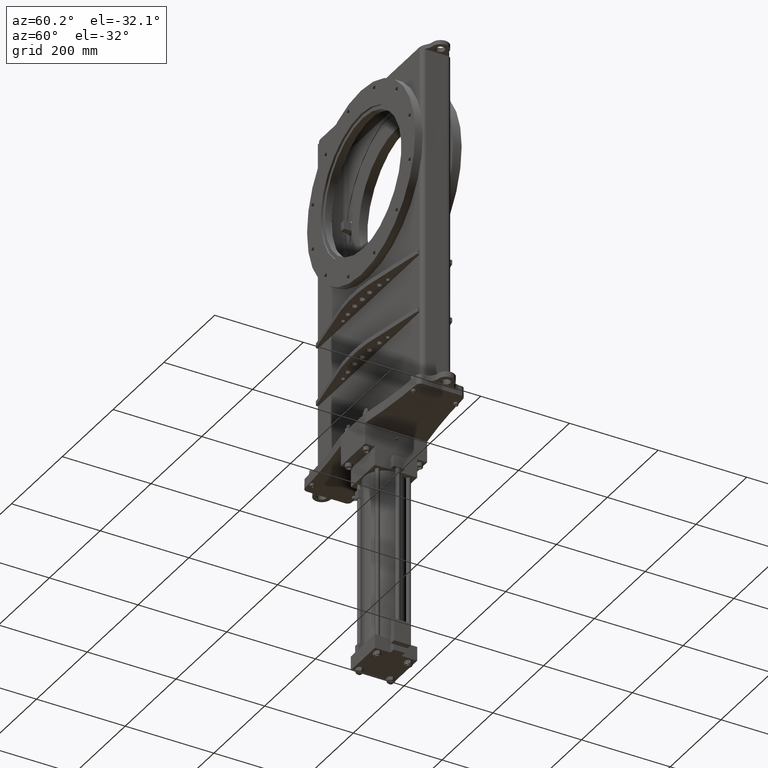
[diagram: clean part render]
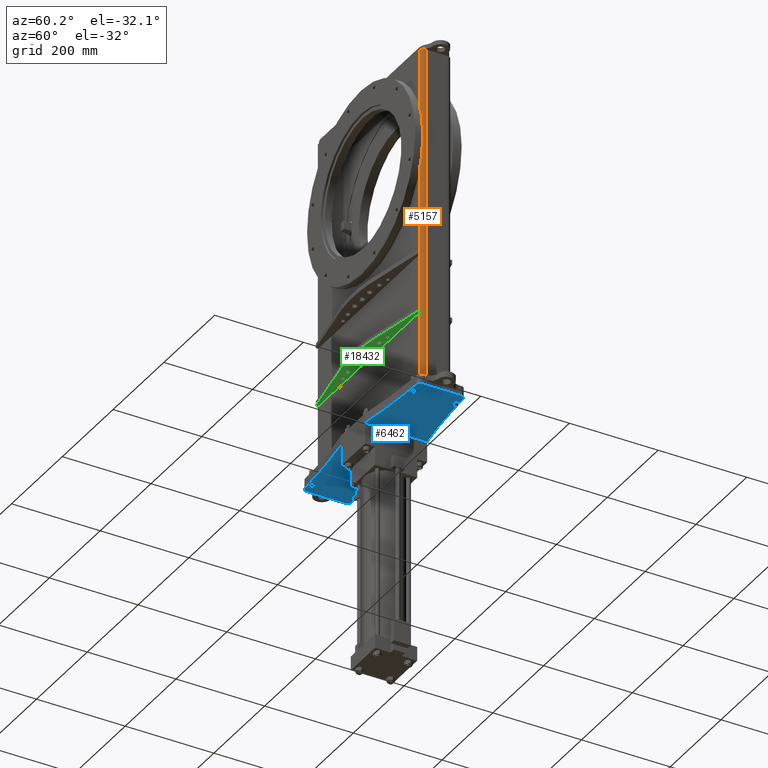
[diagram: same view with three faces highlighted in distinct colors, each labeled with its STEP entity id]
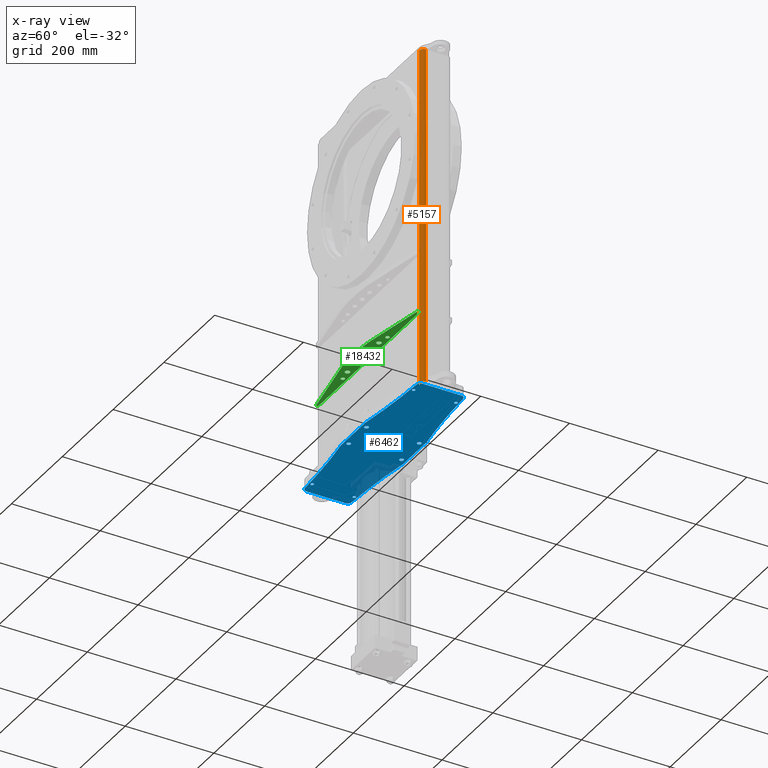
[diagram: x-ray of the same camera — body ghosted, the three highlighted faces saturated]
A machine part, auxiliary view with three faces highlighted in distinct colors.
The next image is the same camera in x-ray (body ghosted, the three faces saturated) — at least one of them is partly hidden behind the body in this view.
Their STEP definitions:

[orange] entity #5157 — the highlighted cylindrical surface (edge-blend (fillet) strip) has radius 9.8425 mm, axis along (0, 0, -1).
#1127 = LINE ( 'NONE', #24862, #17864 ) ;
#1545 = VERTEX_POINT ( 'NONE', #16799 ) ;
#1789 = CARTESIAN_POINT ( 'NONE',  ( 8.187499999999998200, -2.745100000000000800, -22.21999999999999500 ) ) ;
#2691 = DIRECTION ( 'NONE',  ( 0.0000000000000000000, 0.0000000000000000000, -1.000000000000000000 ) ) ;
#2692 = CARTESIAN_POINT ( 'NONE',  ( 7.799999999999998000, -3.132600000000000500, 8.000000000000001800 ) ) ;
#3459 = DIRECTION ( 'NONE',  ( 0.0000000000000000000, 0.0000000000000000000, -1.000000000000000000 ) ) ;
#4138 = DIRECTION ( 'NONE',  ( 1.000000000000000000, -1.409986061246070700E-015, 0.0000000000000000000 ) ) ;
#4750 = CARTESIAN_POINT ( 'NONE',  ( 7.799999999999998000, -3.132600000000000500, -22.21999999999999500 ) ) ;
#5157 = ADVANCED_FACE ( 'NONE', ( #6836 ), #9964, .T. ) ;
#5783 = DIRECTION ( 'NONE',  ( 0.0000000000000000000, 0.0000000000000000000, 1.000000000000000000 ) ) ;
#5958 = EDGE_CURVE ( 'NONE', #23978, #12766, #1127, .T. ) ;
#6730 = EDGE_CURVE ( 'NONE', #23978, #1545, #14354, .T. ) ;
#6836 = FACE_OUTER_BOUND ( 'NONE', #20863, .T. ) ;
#7315 = VERTEX_POINT ( 'NONE', #1789 ) ;
#9627 = ORIENTED_EDGE ( 'NONE', *, *, #5958, .T. ) ;
#9964 = CYLINDRICAL_SURFACE ( 'NONE', #13774, 0.3875000000000001800 ) ;
#10795 = CIRCLE ( 'NONE', #20075, 0.3875000000000001800 ) ;
#12766 = VERTEX_POINT ( 'NONE', #4750 ) ;
#13387 = DIRECTION ( 'NONE',  ( 1.000000000000000000, -1.409986061246070700E-015, 0.0000000000000000000 ) ) ;
#13454 = ORIENTED_EDGE ( 'NONE', *, *, #6730, .F. ) ;
#13478 = DIRECTION ( 'NONE',  ( 0.0000000000000000000, 0.0000000000000000000, 1.000000000000000000 ) ) ;
#13774 = AXIS2_PLACEMENT_3D ( 'NONE', #22027, #16220, #4138 ) ;
#13832 = CARTESIAN_POINT ( 'NONE',  ( 7.799999999999998000, -2.745100000000000300, 8.000000000000001800 ) ) ;
#14354 = CIRCLE ( 'NONE', #25073, 0.3875000000000001800 ) ;
#14935 = EDGE_CURVE ( 'NONE', #1545, #7315, #19479, .T. ) ;
#16220 = DIRECTION ( 'NONE',  ( 0.0000000000000000000, 0.0000000000000000000, -1.000000000000000000 ) ) ;
#16799 = CARTESIAN_POINT ( 'NONE',  ( 8.187499999999998200, -2.745100000000000800, 8.000000000000001800 ) ) ;
#17864 = VECTOR ( 'NONE', #2691, 39.37007874015748100 ) ;
#19479 = LINE ( 'NONE', #23616, #25426 ) ;
#19873 = DIRECTION ( 'NONE',  ( 1.000000000000000000, -1.409986061246070700E-015, 0.0000000000000000000 ) ) ;
#20075 = AXIS2_PLACEMENT_3D ( 'NONE', #25582, #13478, #13387 ) ;
#20863 = EDGE_LOOP ( 'NONE', ( #23639, #25290, #13454, #9627 ) ) ;
#22027 = CARTESIAN_POINT ( 'NONE',  ( 7.799999999999998000, -2.745100000000000300, 8.000000000000001800 ) ) ;
#23616 = CARTESIAN_POINT ( 'NONE',  ( 8.187499999999998200, -2.745100000000000800, 8.000000000000001800 ) ) ;
#23639 = ORIENTED_EDGE ( 'NONE', *, *, #24561, .T. ) ;
#23978 = VERTEX_POINT ( 'NONE', #2692 ) ;
#24561 = EDGE_CURVE ( 'NONE', #12766, #7315, #10795, .T. ) ;
#24862 = CARTESIAN_POINT ( 'NONE',  ( 7.799999999999998000, -3.132600000000000500, 8.000000000000001800 ) ) ;
#25073 = AXIS2_PLACEMENT_3D ( 'NONE', #13832, #5783, #19873 ) ;
#25290 = ORIENTED_EDGE ( 'NONE', *, *, #14935, .F. ) ;
#25426 = VECTOR ( 'NONE', #3459, 39.37007874015748100 ) ;
#25582 = CARTESIAN_POINT ( 'NONE',  ( 7.799999999999998000, -2.745100000000000300, -22.21999999999999500 ) ) ;

[blue] entity #6462 — the highlighted planar face has unit normal (0, 0, 1).
#14 = EDGE_CURVE ( 'NONE', #9957, #6498, #23739, .T. ) ;
#112 = DIRECTION ( 'NONE',  ( -1.545021906791244600E-017, -3.682666505295028400E-016, -1.000000000000000000 ) ) ;
#322 = CARTESIAN_POINT ( 'NONE',  ( -1.562500000000005800, 0.5588999999999940700, -23.09499999999999900 ) ) ;
#383 = AXIS2_PLACEMENT_3D ( 'NONE', #7855, #112, #3901 ) ;
#417 = CARTESIAN_POINT ( 'NONE',  ( 1.845759139634372700, 0.5899000000000080800, -23.09499999999999900 ) ) ;
#429 = EDGE_CURVE ( 'NONE', #12419, #7176, #8901, .T. ) ;
#531 = CIRCLE ( 'NONE', #22050, 0.3750000000000013300 ) ;
#550 = EDGE_CURVE ( 'NONE', #16265, #14873, #6706, .T. ) ;
#553 = VERTEX_POINT ( 'NONE', #25818 ) ;
#607 = ORIENTED_EDGE ( 'NONE', *, *, #11403, .T. ) ;
#665 = ORIENTED_EDGE ( 'NONE', *, *, #22387, .T. ) ;
#703 = EDGE_CURVE ( 'NONE', #19814, #9384, #2923, .T. ) ;
#718 = DIRECTION ( 'NONE',  ( 1.545021906791244600E-017, 3.682666505295028400E-016, 1.000000000000000000 ) ) ;
#926 = LINE ( 'NONE', #19258, #18911 ) ;
#1403 = CIRCLE ( 'NONE', #18356, 60.00000000000020600 ) ;
#1474 = VERTEX_POINT ( 'NONE', #14177 ) ;
#1535 = ORIENTED_EDGE ( 'NONE', *, *, #15161, .T. ) ;
#1636 = DIRECTION ( 'NONE',  ( -1.545021906791244600E-017, -3.682666505295028400E-016, -1.000000000000000000 ) ) ;
#1657 = CARTESIAN_POINT ( 'NONE',  ( -7.875000000000033800, -3.660099999999991000, -23.09499999999999900 ) ) ;
#1675 = CARTESIAN_POINT ( 'NONE',  ( -8.015000000000034300, -3.660099999999991000, -23.09499999999999900 ) ) ;
#1683 = CARTESIAN_POINT ( 'NONE',  ( 1.845759139634372200, -4.160100000000012300, -23.09499999999999900 ) ) ;
#1951 = VERTEX_POINT ( 'NONE', #22228 ) ;
#1989 = CARTESIAN_POINT ( 'NONE',  ( 11.18994721212421700, -63.80762110746872700, -23.09499999999997800 ) ) ;
#2054 = ORIENTED_EDGE ( 'NONE', *, *, #550, .T. ) ;
#2239 = CIRCLE ( 'NONE', #11986, 0.6250000000000021100 ) ;
#2256 = VERTEX_POINT ( 'NONE', #1675 ) ;
#2309 = CIRCLE ( 'NONE', #22095, 0.3750000000000013300 ) ;
#2378 = ORIENTED_EDGE ( 'NONE', *, *, #21895, .T. ) ;
#2409 = CARTESIAN_POINT ( 'NONE',  ( -8.640931349143661700, 0.2915912430798448500, -23.09499999999999900 ) ) ;
#2454 = VERTEX_POINT ( 'NONE', #20248 ) ;
#2484 = DIRECTION ( 'NONE',  ( 1.545021906791222500E-017, 3.682666505295028900E-016, 1.000000000000000000 ) ) ;
#2518 = EDGE_CURVE ( 'NONE', #9834, #7970, #21109, .T. ) ;
#2520 = DIRECTION ( 'NONE',  ( -1.000000000000000000, 1.092739197465703100E-015, 0.0000000000000000000 ) ) ;
#2547 = DIRECTION ( 'NONE',  ( 1.545021906791244600E-017, 3.682666505295028400E-016, 1.000000000000000000 ) ) ;
#2585 = CARTESIAN_POINT ( 'NONE',  ( -9.000000000000032000, 0.9648999999999965400, -23.09499999999999900 ) ) ;
#2596 = AXIS2_PLACEMENT_3D ( 'NONE', #21121, #2898, #16750 ) ;
#2641 = DIRECTION ( 'NONE',  ( 1.545021906791244600E-017, 3.682666505295028400E-016, 1.000000000000000000 ) ) ;
#2660 = DIRECTION ( 'NONE',  ( -1.000000000000000000, 0.0000000000000000000, 0.0000000000000000000 ) ) ;
#2814 = DIRECTION ( 'NONE',  ( -1.545021906791244600E-017, -3.682666505295028400E-016, -1.000000000000000000 ) ) ;
#2817 = DIRECTION ( 'NONE',  ( -1.000000000000000000, 1.092739197465703100E-015, 0.0000000000000000000 ) ) ;
#2819 = ORIENTED_EDGE ( 'NONE', *, *, #19687, .T. ) ;
#2898 = DIRECTION ( 'NONE',  ( -1.545021906791244600E-017, -3.682666505295028400E-016, -1.000000000000000000 ) ) ;
#2923 = CIRCLE ( 'NONE', #19911, 0.1875000000000003900 ) ;
#2924 = ORIENTED_EDGE ( 'NONE', *, *, #4598, .F. ) ;
#3331 = EDGE_CURVE ( 'NONE', #6498, #9957, #4693, .T. ) ;
#3674 = EDGE_LOOP ( 'NONE', ( #2819, #665 ) ) ;
#3696 = CIRCLE ( 'NONE', #17600, 0.1400000000000012300 ) ;
#3728 = DIRECTION ( 'NONE',  ( -1.000000000000000000, 8.741913579725612700E-016, 0.0000000000000000000 ) ) ;
#3773 = DIRECTION ( 'NONE',  ( -1.000000000000000000, 0.0000000000000000000, 0.0000000000000000000 ) ) ;
#3774 = ORIENTED_EDGE ( 'NONE', *, *, #10426, .T. ) ;
#3901 = DIRECTION ( 'NONE',  ( -1.000000000000000000, 8.741913579725614700E-016, 0.0000000000000000000 ) ) ;
#3991 = DIRECTION ( 'NONE',  ( -1.000000000000000000, 2.731847993664253400E-015, 0.0000000000000000000 ) ) ;
#3999 = DIRECTION ( 'NONE',  ( 1.545021906791244600E-017, 3.682666505295028400E-016, 1.000000000000000000 ) ) ;
#4045 = DIRECTION ( 'NONE',  ( 1.545021906791244600E-017, 3.682666505295028400E-016, 1.000000000000000000 ) ) ;
#4051 = VERTEX_POINT ( 'NONE', #23872 ) ;
#4132 = DIRECTION ( 'NONE',  ( -1.000000000000000000, 9.756599977372281900E-016, 0.0000000000000000000 ) ) ;
#4181 = DIRECTION ( 'NONE',  ( -1.000000000000000000, 0.0000000000000000000, 0.0000000000000000000 ) ) ;
#4207 = AXIS2_PLACEMENT_3D ( 'NONE', #7770, #23986, #25996 ) ;
#4369 = EDGE_CURVE ( 'NONE', #21922, #1474, #5595, .T. ) ;
#4503 = CARTESIAN_POINT ( 'NONE',  ( -8.015000000000032500, 0.08990000000000127100, -23.09499999999999900 ) ) ;
#4598 = EDGE_CURVE ( 'NONE', #9464, #13652, #14448, .T. ) ;
#4688 = AXIS2_PLACEMENT_3D ( 'NONE', #1683, #19835, #17916 ) ;
#4693 = CIRCLE ( 'NONE', #10339, 0.1400000000000012300 ) ;
#4757 = AXIS2_PLACEMENT_3D ( 'NONE', #20331, #2547, #10384 ) ;
#4991 = LINE ( 'NONE', #2585, #10352 ) ;
#5214 = EDGE_LOOP ( 'NONE', ( #17499, #16343 ) ) ;
#5323 = EDGE_CURVE ( 'NONE', #1474, #8414, #10491, .T. ) ;
#5404 = EDGE_LOOP ( 'NONE', ( #2054, #17545 ) ) ;
#5520 = CARTESIAN_POINT ( 'NONE',  ( 1.187500000000002000, -4.129099999999999300, -23.09499999999999900 ) ) ;
#5595 = CIRCLE ( 'NONE', #2596, 0.3750000000000013300 ) ;
#5712 = DIRECTION ( 'NONE',  ( 1.545021906791244600E-017, 3.682666505295028400E-016, 1.000000000000000000 ) ) ;
#5990 = AXIS2_PLACEMENT_3D ( 'NONE', #8893, #6789, #17188 ) ;
#6065 = VERTEX_POINT ( 'NONE', #25112 ) ;
#6130 = ORIENTED_EDGE ( 'NONE', *, *, #7934, .T. ) ;
#6220 = CARTESIAN_POINT ( 'NONE',  ( -7.875000000000031100, 0.08990000000000113200, -23.09499999999999900 ) ) ;
#6308 = CARTESIAN_POINT ( 'NONE',  ( 1.375000000000002700, 0.5588999999999921800, -23.09499999999999900 ) ) ;
#6389 = DIRECTION ( 'NONE',  ( -1.000000000000000000, 1.092739197465703100E-015, 0.0000000000000000000 ) ) ;
#6462 = ADVANCED_FACE ( 'NONE', ( #8656, #25674, #25019, #19059, #18431, #17180, #13726, #14982, #22846, #11508 ), #22746, .F. ) ;
#6498 = VERTEX_POINT ( 'NONE', #4503 ) ;
#6627 = DIRECTION ( 'NONE',  ( -1.000000000000000000, 9.436895709313805000E-016, 1.545021906791187600E-017 ) ) ;
#6687 = CARTESIAN_POINT ( 'NONE',  ( 1.375000000000002700, 0.5588999999999921800, -23.09499999999999900 ) ) ;
#6706 = CIRCLE ( 'NONE', #20922, 0.1875000000000003900 ) ;
#6721 = EDGE_CURVE ( 'NONE', #4051, #14766, #1403, .T. ) ;
#6729 = AXIS2_PLACEMENT_3D ( 'NONE', #22246, #10175, #4181 ) ;
#6762 = VERTEX_POINT ( 'NONE', #21735 ) ;
#6782 = DIRECTION ( 'NONE',  ( -1.000000000000000000, 2.731847993664253400E-015, 0.0000000000000000000 ) ) ;
#6789 = DIRECTION ( 'NONE',  ( 1.545021906791244600E-017, 3.682666505295028400E-016, 1.000000000000000000 ) ) ;
#7042 = VERTEX_POINT ( 'NONE', #17060 ) ;
#7176 = VERTEX_POINT ( 'NONE', #7508 ) ;
#7279 = CARTESIAN_POINT ( 'NONE',  ( -7.735000000000029600, 0.08990000000000097900, -23.09499999999999900 ) ) ;
#7293 = AXIS2_PLACEMENT_3D ( 'NONE', #12960, #2814, #6782 ) ;
#7508 = CARTESIAN_POINT ( 'NONE',  ( -1.187500000000005300, -4.129099999999994000, -23.09499999999999900 ) ) ;
#7550 = CARTESIAN_POINT ( 'NONE',  ( -8.625000000000032000, -0.08307019357257944300, -23.09499999999999900 ) ) ;
#7770 = CARTESIAN_POINT ( 'NONE',  ( -1.375000000000005800, -4.129099999999994000, -23.09499999999999900 ) ) ;
#7807 = DIRECTION ( 'NONE',  ( -1.000000000000000000, 2.913971193241870500E-015, 0.0000000000000000000 ) ) ;
#7855 = CARTESIAN_POINT ( 'NONE',  ( -11.18994721212420500, 60.23742110746872700, -23.09500000000002000 ) ) ;
#7934 = EDGE_CURVE ( 'NONE', #13253, #9834, #2309, .T. ) ;
#7970 = VERTEX_POINT ( 'NONE', #8507 ) ;
#8032 = ORIENTED_EDGE ( 'NONE', *, *, #23311, .T. ) ;
#8115 = CARTESIAN_POINT ( 'NONE',  ( 8.015000000000032500, 0.08989999999998458900, -23.09499999999999900 ) ) ;
#8128 = ORIENTED_EDGE ( 'NONE', *, *, #12886, .T. ) ;
#8296 = EDGE_CURVE ( 'NONE', #553, #12976, #21864, .T. ) ;
#8344 = CARTESIAN_POINT ( 'NONE',  ( -11.18994721212422000, -63.80762110746871900, -23.09499999999997800 ) ) ;
#8414 = VERTEX_POINT ( 'NONE', #12987 ) ;
#8507 = CARTESIAN_POINT ( 'NONE',  ( 8.640931349143663500, 0.2915912430798186500, -23.09499999999999900 ) ) ;
#8656 = FACE_BOUND ( 'NONE', #21367, .T. ) ;
#8713 = DIRECTION ( 'NONE',  ( 1.545021906791244600E-017, 3.682666505295028400E-016, 1.000000000000000000 ) ) ;
#8770 = VERTEX_POINT ( 'NONE', #25786 ) ;
#8839 = CARTESIAN_POINT ( 'NONE',  ( 7.735000000000029600, 0.08989999999998488100, -23.09499999999999900 ) ) ;
#8891 = AXIS2_PLACEMENT_3D ( 'NONE', #18480, #20405, #4132 ) ;
#8893 = CARTESIAN_POINT ( 'NONE',  ( 7.875000000000031100, -3.660100000000007000, -23.09499999999999900 ) ) ;
#8901 = CIRCLE ( 'NONE', #4207, 0.1875000000000003900 ) ;
#9017 = CIRCLE ( 'NONE', #22536, 0.3750000000000013300 ) ;
#9018 = DIRECTION ( 'NONE',  ( -1.000000000000000000, 9.756599977372281900E-016, 0.0000000000000000000 ) ) ;
#9040 = CIRCLE ( 'NONE', #12396, 0.1875000000000003900 ) ;
#9111 = EDGE_CURVE ( 'NONE', #10230, #6762, #2239, .T. ) ;
#9319 = DIRECTION ( 'NONE',  ( -1.545021906791244600E-017, -3.682666505295028400E-016, -1.000000000000000000 ) ) ;
#9329 = DIRECTION ( 'NONE',  ( -1.000000000000000000, 8.741913579725612700E-016, 0.0000000000000000000 ) ) ;
#9384 = VERTEX_POINT ( 'NONE', #18793 ) ;
#9464 = VERTEX_POINT ( 'NONE', #23430 ) ;
#9468 = DIRECTION ( 'NONE',  ( -1.000000000000000000, 9.436895709313805000E-016, 1.545021906791187300E-017 ) ) ;
#9505 = DIRECTION ( 'NONE',  ( 1.545021906791244600E-017, 3.682666505295028400E-016, 1.000000000000000000 ) ) ;
#9560 = CARTESIAN_POINT ( 'NONE',  ( 7.875000000000031100, 0.08989999999998474200, -23.09499999999999900 ) ) ;
#9834 = VERTEX_POINT ( 'NONE', #15066 ) ;
#9917 = LINE ( 'NONE', #20240, #17510 ) ;
#9957 = VERTEX_POINT ( 'NONE', #7279 ) ;
#10010 = DIRECTION ( 'NONE',  ( -1.000000000000000000, 8.741913579725612700E-016, 0.0000000000000000000 ) ) ;
#10018 = DIRECTION ( 'NONE',  ( -1.000000000000000000, 9.756599977372281900E-016, 0.0000000000000000000 ) ) ;
#10175 = DIRECTION ( 'NONE',  ( 1.545021906791244600E-017, 3.682666505295028400E-016, 1.000000000000000000 ) ) ;
#10213 = DIRECTION ( 'NONE',  ( -1.000000000000000000, 2.913971193241870500E-015, 0.0000000000000000000 ) ) ;
#10230 = VERTEX_POINT ( 'NONE', #16634 ) ;
#10335 = CIRCLE ( 'NONE', #21858, 0.3750000000000013300 ) ;
#10339 = AXIS2_PLACEMENT_3D ( 'NONE', #21013, #23048, #9018 ) ;
#10352 = VECTOR ( 'NONE', #12905, 39.37007874015748100 ) ;
#10384 = DIRECTION ( 'NONE',  ( -1.000000000000000000, 8.741913579725614700E-016, 0.0000000000000000000 ) ) ;
#10426 = EDGE_CURVE ( 'NONE', #7042, #21922, #926, .T. ) ;
#10491 = CIRCLE ( 'NONE', #18158, 60.00000000000020600 ) ;
#10677 = CIRCLE ( 'NONE', #5990, 0.1400000000000012300 ) ;
#10679 = CARTESIAN_POINT ( 'NONE',  ( -7.875000000000033800, -3.660099999999991000, -23.09499999999999900 ) ) ;
#10783 = EDGE_CURVE ( 'NONE', #8770, #1951, #4991, .T. ) ;
#10820 = AXIS2_PLACEMENT_3D ( 'NONE', #9560, #15586, #19701 ) ;
#10829 = AXIS2_PLACEMENT_3D ( 'NONE', #11501, #19677, #21621 ) ;
#10863 = VERTEX_POINT ( 'NONE', #16868 ) ;
#10949 = ORIENTED_EDGE ( 'NONE', *, *, #2518, .T. ) ;
#11150 = ORIENTED_EDGE ( 'NONE', *, *, #6721, .F. ) ;
#11403 = EDGE_CURVE ( 'NONE', #2256, #12395, #13823, .T. ) ;
#11468 = ORIENTED_EDGE ( 'NONE', *, *, #9111, .T. ) ;
#11501 = CARTESIAN_POINT ( 'NONE',  ( 1.375000000000002400, -4.129099999999999300, -23.09499999999999900 ) ) ;
#11508 = FACE_OUTER_BOUND ( 'NONE', #24435, .T. ) ;
#11611 = AXIS2_PLACEMENT_3D ( 'NONE', #14567, #2484, #6627 ) ;
#11671 = ORIENTED_EDGE ( 'NONE', *, *, #15635, .T. ) ;
#11720 = LINE ( 'NONE', #14981, #25855 ) ;
#11824 = ORIENTED_EDGE ( 'NONE', *, *, #14, .T. ) ;
#11939 = ORIENTED_EDGE ( 'NONE', *, *, #8296, .T. ) ;
#11977 = AXIS2_PLACEMENT_3D ( 'NONE', #6220, #20309, #10018 ) ;
#11986 = AXIS2_PLACEMENT_3D ( 'NONE', #12101, #3999, #3728 ) ;
#12051 = CARTESIAN_POINT ( 'NONE',  ( 8.625000000000033800, -3.487129806427417200, -23.09499999999999900 ) ) ;
#12101 = CARTESIAN_POINT ( 'NONE',  ( -5.492665148080862000E-016, -1.785100000000002800, -23.09499999999999900 ) ) ;
#12146 = CARTESIAN_POINT ( 'NONE',  ( 7.875000000000031100, -3.660100000000007000, -23.09499999999999900 ) ) ;
#12395 = VERTEX_POINT ( 'NONE', #13101 ) ;
#12396 = AXIS2_PLACEMENT_3D ( 'NONE', #23028, #17218, #19142 ) ;
#12419 = VERTEX_POINT ( 'NONE', #21445 ) ;
#12556 = EDGE_LOOP ( 'NONE', ( #15561, #11468 ) ) ;
#12886 = EDGE_CURVE ( 'NONE', #9464, #16378, #18951, .T. ) ;
#12905 = DIRECTION ( 'NONE',  ( 1.110223024625161500E-016, 1.000000000000000000, -3.682666505295027500E-016 ) ) ;
#12959 = CIRCLE ( 'NONE', #26005, 0.6250000000000021100 ) ;
#12960 = CARTESIAN_POINT ( 'NONE',  ( -1.845759139634416800, 0.5899000000000103100, -23.09499999999999900 ) ) ;
#12965 = EDGE_LOOP ( 'NONE', ( #22032, #11939 ) ) ;
#12976 = VERTEX_POINT ( 'NONE', #5520 ) ;
#12987 = CARTESIAN_POINT ( 'NONE',  ( -8.640931349143663500, -3.861791243079832500, -23.09499999999999900 ) ) ;
#13021 = CIRCLE ( 'NONE', #13032, 0.1875000000000003900 ) ;
#13032 = AXIS2_PLACEMENT_3D ( 'NONE', #6308, #22593, #2520 ) ;
#13101 = CARTESIAN_POINT ( 'NONE',  ( -7.735000000000032300, -3.660099999999991000, -23.09499999999999900 ) ) ;
#13253 = VERTEX_POINT ( 'NONE', #24431 ) ;
#13393 = ORIENTED_EDGE ( 'NONE', *, *, #18726, .T. ) ;
#13652 = VERTEX_POINT ( 'NONE', #2409 ) ;
#13726 = FACE_BOUND ( 'NONE', #12965, .T. ) ;
#13823 = CIRCLE ( 'NONE', #23163, 0.1400000000000012300 ) ;
#13840 = DIRECTION ( 'NONE',  ( -1.545021906791244600E-017, -3.682666505295028400E-016, -1.000000000000000000 ) ) ;
#14177 = CARTESIAN_POINT ( 'NONE',  ( -1.903797574867272900, -4.530581497561928300, -23.09499999999999900 ) ) ;
#14276 = EDGE_CURVE ( 'NONE', #6065, #2454, #10677, .T. ) ;
#14448 = CIRCLE ( 'NONE', #383, 60.00000000000019200 ) ;
#14464 = EDGE_CURVE ( 'NONE', #1951, #13652, #10335, .T. ) ;
#14468 = DIRECTION ( 'NONE',  ( -1.545021906791244600E-017, -3.682666505295028400E-016, -1.000000000000000000 ) ) ;
#14520 = ORIENTED_EDGE ( 'NONE', *, *, #14464, .T. ) ;
#14532 = DIRECTION ( 'NONE',  ( -1.545021906791244600E-017, -3.682666505295028400E-016, -1.000000000000000000 ) ) ;
#14567 = CARTESIAN_POINT ( 'NONE',  ( 9.000000000000032000, -4.535100000000004300, -23.09499999999999900 ) ) ;
#14727 = CARTESIAN_POINT ( 'NONE',  ( -1.375000000000005300, 0.5588999999999938500, -23.09499999999999900 ) ) ;
#14766 = VERTEX_POINT ( 'NONE', #21245 ) ;
#14783 = EDGE_CURVE ( 'NONE', #7176, #12419, #9040, .T. ) ;
#14873 = VERTEX_POINT ( 'NONE', #21604 ) ;
#14981 = CARTESIAN_POINT ( 'NONE',  ( -9.000000000000032000, 0.9648999999999965400, -23.09499999999999900 ) ) ;
#14982 = FACE_BOUND ( 'NONE', #5214, .T. ) ;
#15066 = CARTESIAN_POINT ( 'NONE',  ( 1.903797574867228200, 0.9603814975619138200, -23.09499999999999900 ) ) ;
#15161 = EDGE_CURVE ( 'NONE', #8414, #8770, #531, .T. ) ;
#15366 = ORIENTED_EDGE ( 'NONE', *, *, #429, .T. ) ;
#15426 = DIRECTION ( 'NONE',  ( -1.000000000000000000, 9.561467977824886800E-016, 0.0000000000000000000 ) ) ;
#15561 = ORIENTED_EDGE ( 'NONE', *, *, #19232, .T. ) ;
#15586 = DIRECTION ( 'NONE',  ( 1.545021906791244600E-017, 3.682666505295028400E-016, 1.000000000000000000 ) ) ;
#15635 = EDGE_CURVE ( 'NONE', #16268, #14766, #9017, .T. ) ;
#15669 = EDGE_CURVE ( 'NONE', #14873, #16265, #17246, .T. ) ;
#15707 = CARTESIAN_POINT ( 'NONE',  ( -5.492665148080862000E-016, -1.785100000000002800, -23.09499999999999900 ) ) ;
#16073 = DIRECTION ( 'NONE',  ( -1.545021906791244600E-017, -3.682666505295028400E-016, -1.000000000000000000 ) ) ;
#16265 = VERTEX_POINT ( 'NONE', #322 ) ;
#16268 = VERTEX_POINT ( 'NONE', #16303 ) ;
#16303 = CARTESIAN_POINT ( 'NONE',  ( 9.000000000000032000, -3.487129806427417200, -23.09499999999999900 ) ) ;
#16343 = ORIENTED_EDGE ( 'NONE', *, *, #703, .T. ) ;
#16378 = VERTEX_POINT ( 'NONE', #16911 ) ;
#16512 = ORIENTED_EDGE ( 'NONE', *, *, #3331, .T. ) ;
#16634 = CARTESIAN_POINT ( 'NONE',  ( 0.6250000000000015500, -1.785100000000003200, -23.09499999999999900 ) ) ;
#16750 = DIRECTION ( 'NONE',  ( -1.000000000000000000, -4.662353909186992800E-014, 0.0000000000000000000 ) ) ;
#16868 = CARTESIAN_POINT ( 'NONE',  ( 9.000000000000033800, -0.08307019357260375700, -23.09499999999999900 ) ) ;
#16911 = CARTESIAN_POINT ( 'NONE',  ( -1.845759139634416600, 0.9648999999999889900, -23.09499999999999900 ) ) ;
#17060 = CARTESIAN_POINT ( 'NONE',  ( 1.845759139634373100, -4.535099999999996400, -23.09499999999999900 ) ) ;
#17161 = EDGE_CURVE ( 'NONE', #7970, #10863, #22528, .T. ) ;
#17180 = FACE_BOUND ( 'NONE', #22345, .T. ) ;
#17188 = DIRECTION ( 'NONE',  ( -1.000000000000000000, 0.0000000000000000000, 0.0000000000000000000 ) ) ;
#17218 = DIRECTION ( 'NONE',  ( 1.545021906791244600E-017, 3.682666505295028400E-016, 1.000000000000000000 ) ) ;
#17246 = CIRCLE ( 'NONE', #25719, 0.1875000000000003900 ) ;
#17499 = ORIENTED_EDGE ( 'NONE', *, *, #25959, .T. ) ;
#17502 = ORIENTED_EDGE ( 'NONE', *, *, #17161, .T. ) ;
#17510 = VECTOR ( 'NONE', #22282, 39.37007874015748100 ) ;
#17545 = ORIENTED_EDGE ( 'NONE', *, *, #15669, .T. ) ;
#17600 = AXIS2_PLACEMENT_3D ( 'NONE', #12146, #4045, #3773 ) ;
#17916 = DIRECTION ( 'NONE',  ( -1.000000000000000000, -1.894081275607215900E-014, 0.0000000000000000000 ) ) ;
#18007 = CARTESIAN_POINT ( 'NONE',  ( 8.625000000000035500, -0.08307019357260567200, -23.09499999999999900 ) ) ;
#18158 = AXIS2_PLACEMENT_3D ( 'NONE', #8344, #22615, #18574 ) ;
#18356 = AXIS2_PLACEMENT_3D ( 'NONE', #1989, #1636, #10010 ) ;
#18389 = CARTESIAN_POINT ( 'NONE',  ( -1.375000000000005300, 0.5588999999999938500, -23.09499999999999900 ) ) ;
#18431 = FACE_BOUND ( 'NONE', #12556, .T. ) ;
#18480 = CARTESIAN_POINT ( 'NONE',  ( 7.875000000000031100, 0.08989999999998474200, -23.09499999999999900 ) ) ;
#18574 = DIRECTION ( 'NONE',  ( -1.000000000000000000, 8.741913579725612700E-016, 0.0000000000000000000 ) ) ;
#18726 = EDGE_CURVE ( 'NONE', #16378, #13253, #11720, .T. ) ;
#18793 = CARTESIAN_POINT ( 'NONE',  ( 1.187500000000002200, 0.5588999999999924000, -23.09499999999999900 ) ) ;
#18911 = VECTOR ( 'NONE', #9468, 39.37007874015748100 ) ;
#18933 = DIRECTION ( 'NONE',  ( 1.000000000000000000, -9.436895709313805000E-016, -1.545021906791187300E-017 ) ) ;
#18951 = CIRCLE ( 'NONE', #7293, 0.3750000000000013300 ) ;
#19059 = FACE_BOUND ( 'NONE', #24785, .T. ) ;
#19142 = DIRECTION ( 'NONE',  ( -1.000000000000000000, 0.0000000000000000000, 0.0000000000000000000 ) ) ;
#19173 = ORIENTED_EDGE ( 'NONE', *, *, #14783, .T. ) ;
#19232 = EDGE_CURVE ( 'NONE', #6762, #10230, #12959, .T. ) ;
#19258 = CARTESIAN_POINT ( 'NONE',  ( -9.000000000000033800, -4.535099999999986600, -23.09499999999999900 ) ) ;
#19260 = CIRCLE ( 'NONE', #10829, 0.1875000000000003900 ) ;
#19677 = DIRECTION ( 'NONE',  ( 1.545021906791244600E-017, 3.682666505295028400E-016, 1.000000000000000000 ) ) ;
#19687 = EDGE_CURVE ( 'NONE', #20044, #25147, #23316, .T. ) ;
#19701 = DIRECTION ( 'NONE',  ( -1.000000000000000000, 9.756599977372281900E-016, 0.0000000000000000000 ) ) ;
#19727 = CIRCLE ( 'NONE', #4688, 0.3750000000000013300 ) ;
#19814 = VERTEX_POINT ( 'NONE', #23996 ) ;
#19835 = DIRECTION ( 'NONE',  ( -1.545021906791244600E-017, -3.682666505295028400E-016, -1.000000000000000000 ) ) ;
#19896 = DIRECTION ( 'NONE',  ( -1.000000000000000000, 0.0000000000000000000, 0.0000000000000000000 ) ) ;
#19911 = AXIS2_PLACEMENT_3D ( 'NONE', #6687, #8713, #2817 ) ;
#20044 = VERTEX_POINT ( 'NONE', #8839 ) ;
#20240 = CARTESIAN_POINT ( 'NONE',  ( 9.000000000000033800, 0.9648999999999828800, -23.09499999999999900 ) ) ;
#20248 = CARTESIAN_POINT ( 'NONE',  ( 7.735000000000029600, -3.660100000000007000, -23.09499999999999900 ) ) ;
#20309 = DIRECTION ( 'NONE',  ( 1.545021906791244600E-017, 3.682666505295028400E-016, 1.000000000000000000 ) ) ;
#20331 = CARTESIAN_POINT ( 'NONE',  ( 11.18994721212423100, 60.23742110746869800, -23.09500000000002000 ) ) ;
#20341 = CARTESIAN_POINT ( 'NONE',  ( -1.845759139634417300, -4.535099999999994600, -23.09499999999999900 ) ) ;
#20405 = DIRECTION ( 'NONE',  ( 1.545021906791244600E-017, 3.682666505295028400E-016, 1.000000000000000000 ) ) ;
#20512 = DIRECTION ( 'NONE',  ( -1.000000000000000000, 1.092739197465703100E-015, 0.0000000000000000000 ) ) ;
#20582 = DIRECTION ( 'NONE',  ( -1.000000000000000000, 2.731847993664253400E-015, 0.0000000000000000000 ) ) ;
#20633 = CIRCLE ( 'NONE', #8891, 0.1400000000000012300 ) ;
#20666 = DIRECTION ( 'NONE',  ( 1.545021906791244600E-017, 3.682666505295028400E-016, 1.000000000000000000 ) ) ;
#20692 = EDGE_CURVE ( 'NONE', #2454, #6065, #3696, .T. ) ;
#20838 = ORIENTED_EDGE ( 'NONE', *, *, #14276, .T. ) ;
#20922 = AXIS2_PLACEMENT_3D ( 'NONE', #14727, #2641, #20512 ) ;
#21013 = CARTESIAN_POINT ( 'NONE',  ( -7.875000000000031100, 0.08990000000000113200, -23.09499999999999900 ) ) ;
#21109 = CIRCLE ( 'NONE', #4757, 60.00000000000019200 ) ;
#21121 = CARTESIAN_POINT ( 'NONE',  ( -1.845759139634417100, -4.160100000000009700, -23.09499999999999900 ) ) ;
#21245 = CARTESIAN_POINT ( 'NONE',  ( 8.640931349143661700, -3.861791243079841300, -23.09499999999999900 ) ) ;
#21367 = EDGE_LOOP ( 'NONE', ( #607, #22757 ) ) ;
#21445 = CARTESIAN_POINT ( 'NONE',  ( -1.562500000000006000, -4.129099999999994000, -23.09499999999999900 ) ) ;
#21498 = ORIENTED_EDGE ( 'NONE', *, *, #4369, .T. ) ;
#21604 = CARTESIAN_POINT ( 'NONE',  ( -1.187500000000005100, 0.5588999999999936200, -23.09499999999999900 ) ) ;
#21621 = DIRECTION ( 'NONE',  ( -1.000000000000000000, 0.0000000000000000000, 0.0000000000000000000 ) ) ;
#21735 = CARTESIAN_POINT ( 'NONE',  ( -0.6250000000000026600, -1.785100000000002100, -23.09499999999999900 ) ) ;
#21858 = AXIS2_PLACEMENT_3D ( 'NONE', #7550, #9319, #15426 ) ;
#21864 = CIRCLE ( 'NONE', #6729, 0.1875000000000003900 ) ;
#21895 = EDGE_CURVE ( 'NONE', #4051, #7042, #19727, .T. ) ;
#21922 = VERTEX_POINT ( 'NONE', #20341 ) ;
#22032 = ORIENTED_EDGE ( 'NONE', *, *, #25031, .T. ) ;
#22050 = AXIS2_PLACEMENT_3D ( 'NONE', #22207, #14468, #10213 ) ;
#22095 = AXIS2_PLACEMENT_3D ( 'NONE', #417, #14532, #20582 ) ;
#22207 = CARTESIAN_POINT ( 'NONE',  ( -8.625000000000033800, -3.487129806427408300, -23.09499999999999900 ) ) ;
#22228 = CARTESIAN_POINT ( 'NONE',  ( -9.000000000000032000, -0.08307019357257944300, -23.09499999999999900 ) ) ;
#22246 = CARTESIAN_POINT ( 'NONE',  ( 1.375000000000002400, -4.129099999999999300, -23.09499999999999900 ) ) ;
#22282 = DIRECTION ( 'NONE',  ( -1.110223024625161500E-016, -1.000000000000000000, 3.682666505295027500E-016 ) ) ;
#22325 = EDGE_CURVE ( 'NONE', #12395, #2256, #22525, .T. ) ;
#22345 = EDGE_LOOP ( 'NONE', ( #15366, #19173 ) ) ;
#22387 = EDGE_CURVE ( 'NONE', #25147, #20044, #20633, .T. ) ;
#22525 = CIRCLE ( 'NONE', #23235, 0.1400000000000012300 ) ;
#22528 = CIRCLE ( 'NONE', #25239, 0.3750000000000013300 ) ;
#22536 = AXIS2_PLACEMENT_3D ( 'NONE', #12051, #13840, #7807 ) ;
#22593 = DIRECTION ( 'NONE',  ( 1.545021906791244600E-017, 3.682666505295028400E-016, 1.000000000000000000 ) ) ;
#22615 = DIRECTION ( 'NONE',  ( 1.545021906791244600E-017, 3.682666505295028400E-016, 1.000000000000000000 ) ) ;
#22710 = ORIENTED_EDGE ( 'NONE', *, *, #5323, .T. ) ;
#22746 = PLANE ( 'NONE',  #11611 ) ;
#22757 = ORIENTED_EDGE ( 'NONE', *, *, #22325, .T. ) ;
#22846 = FACE_BOUND ( 'NONE', #5404, .T. ) ;
#23028 = CARTESIAN_POINT ( 'NONE',  ( -1.375000000000005800, -4.129099999999994000, -23.09499999999999900 ) ) ;
#23048 = DIRECTION ( 'NONE',  ( 1.545021906791244600E-017, 3.682666505295028400E-016, 1.000000000000000000 ) ) ;
#23111 = ORIENTED_EDGE ( 'NONE', *, *, #10783, .T. ) ;
#23163 = AXIS2_PLACEMENT_3D ( 'NONE', #10679, #718, #2660 ) ;
#23235 = AXIS2_PLACEMENT_3D ( 'NONE', #1657, #5712, #19896 ) ;
#23311 = EDGE_CURVE ( 'NONE', #10863, #16268, #9917, .T. ) ;
#23316 = CIRCLE ( 'NONE', #10820, 0.1400000000000012300 ) ;
#23430 = CARTESIAN_POINT ( 'NONE',  ( -1.903797574867272000, 0.9603814975619247000, -23.09499999999999900 ) ) ;
#23535 = EDGE_LOOP ( 'NONE', ( #16512, #11824 ) ) ;
#23739 = CIRCLE ( 'NONE', #11977, 0.1400000000000012300 ) ;
#23872 = CARTESIAN_POINT ( 'NONE',  ( 1.903797574867227600, -4.530581497561921200, -23.09499999999999900 ) ) ;
#23986 = DIRECTION ( 'NONE',  ( 1.545021906791244600E-017, 3.682666505295028400E-016, 1.000000000000000000 ) ) ;
#23996 = CARTESIAN_POINT ( 'NONE',  ( 1.562500000000003100, 0.5588999999999920700, -23.09499999999999900 ) ) ;
#24431 = CARTESIAN_POINT ( 'NONE',  ( 1.845759139634374000, 0.9648999999999867700, -23.09499999999999900 ) ) ;
#24435 = EDGE_LOOP ( 'NONE', ( #2924, #8128, #13393, #6130, #10949, #17502, #8032, #11671, #11150, #2378, #3774, #21498, #22710, #1535, #23111, #14520 ) ) ;
#24785 = EDGE_LOOP ( 'NONE', ( #25993, #20838 ) ) ;
#25019 = FACE_BOUND ( 'NONE', #3674, .T. ) ;
#25031 = EDGE_CURVE ( 'NONE', #12976, #553, #19260, .T. ) ;
#25112 = CARTESIAN_POINT ( 'NONE',  ( 8.015000000000032500, -3.660100000000007000, -23.09499999999999900 ) ) ;
#25147 = VERTEX_POINT ( 'NONE', #8115 ) ;
#25239 = AXIS2_PLACEMENT_3D ( 'NONE', #18007, #16073, #3991 ) ;
#25674 = FACE_BOUND ( 'NONE', #23535, .T. ) ;
#25719 = AXIS2_PLACEMENT_3D ( 'NONE', #18389, #20666, #6389 ) ;
#25786 = CARTESIAN_POINT ( 'NONE',  ( -9.000000000000033800, -3.487129806427408300, -23.09499999999999900 ) ) ;
#25818 = CARTESIAN_POINT ( 'NONE',  ( 1.562500000000002900, -4.129099999999999300, -23.09499999999999900 ) ) ;
#25855 = VECTOR ( 'NONE', #18933, 39.37007874015748100 ) ;
#25959 = EDGE_CURVE ( 'NONE', #9384, #19814, #13021, .T. ) ;
#25993 = ORIENTED_EDGE ( 'NONE', *, *, #20692, .T. ) ;
#25996 = DIRECTION ( 'NONE',  ( -1.000000000000000000, 0.0000000000000000000, 0.0000000000000000000 ) ) ;
#26005 = AXIS2_PLACEMENT_3D ( 'NONE', #15707, #9505, #9329 ) ;

[green] entity #18432 — the highlighted planar face has unit normal (0, -0, -1).
#20 = EDGE_CURVE ( 'NONE', #16935, #18615, #2324, .T. ) ;
#57 = ORIENTED_EDGE ( 'NONE', *, *, #20, .T. ) ;
#65 = CARTESIAN_POINT ( 'NONE',  ( 3.463759709569536500, -3.462599999999998800, -15.84499999999999700 ) ) ;
#76 = DIRECTION ( 'NONE',  ( -1.000000000000000000, 0.0000000000000000000, 0.0000000000000000000 ) ) ;
#202 = AXIS2_PLACEMENT_3D ( 'NONE', #3476, #3386, #21796 ) ;
#286 = VERTEX_POINT ( 'NONE', #6928 ) ;
#329 = CARTESIAN_POINT ( 'NONE',  ( -1.379324279296009400, -3.762600000000001700, -15.84499999999999700 ) ) ;
#385 = CIRCLE ( 'NONE', #15202, 0.2350000000000002400 ) ;
#1014 = EDGE_LOOP ( 'NONE', ( #11965, #15835 ) ) ;
#1226 = VECTOR ( 'NONE', #23225, 39.37007874015748100 ) ;
#1297 = EDGE_LOOP ( 'NONE', ( #11298, #57 ) ) ;
#1319 = ORIENTED_EDGE ( 'NONE', *, *, #5408, .T. ) ;
#1836 = VECTOR ( 'NONE', #11595, 39.37007874015748100 ) ;
#1875 = CARTESIAN_POINT ( 'NONE',  ( -7.875000000000001800, -3.307328878005964900, -15.84499999999999700 ) ) ;
#1888 = DIRECTION ( 'NONE',  ( -5.551115123125781500E-017, 1.412620342672703700E-031, 1.000000000000000000 ) ) ;
#1910 = VERTEX_POINT ( 'NONE', #16433 ) ;
#1997 = CARTESIAN_POINT ( 'NONE',  ( -2.441948226235573400, -3.632600000000000500, -15.84499999999999700 ) ) ;
#2040 = CIRCLE ( 'NONE', #25714, 0.2149999999999992200 ) ;
#2098 = DIRECTION ( 'NONE',  ( -5.551115123125781500E-017, 1.412620342672703700E-031, 1.000000000000000000 ) ) ;
#2126 = EDGE_CURVE ( 'NONE', #10802, #18189, #7883, .T. ) ;
#2136 = CIRCLE ( 'NONE', #202, 0.2500000000000000600 ) ;
#2324 = CIRCLE ( 'NONE', #15708, 0.1750000000000001800 ) ;
#2408 = EDGE_LOOP ( 'NONE', ( #3378, #24420 ) ) ;
#2681 = EDGE_CURVE ( 'NONE', #12018, #13486, #11015, .T. ) ;
#2724 = VERTEX_POINT ( 'NONE', #25151 ) ;
#2892 = DIRECTION ( 'NONE',  ( -5.551115123125781500E-017, 1.412620342672703700E-031, 1.000000000000000000 ) ) ;
#2918 = FACE_BOUND ( 'NONE', #2408, .T. ) ;
#3057 = CARTESIAN_POINT ( 'NONE',  ( -3.463759709569536500, -3.462599999999999700, -15.84499999999999700 ) ) ;
#3066 = DIRECTION ( 'NONE',  ( 1.000000000000000000, 0.0000000000000000000, 0.0000000000000000000 ) ) ;
#3183 = DIRECTION ( 'NONE',  ( 1.000000000000000000, 0.0000000000000000000, 0.0000000000000000000 ) ) ;
#3263 = VERTEX_POINT ( 'NONE', #25278 ) ;
#3349 = ORIENTED_EDGE ( 'NONE', *, *, #12058, .F. ) ;
#3378 = ORIENTED_EDGE ( 'NONE', *, *, #18729, .T. ) ;
#3386 = DIRECTION ( 'NONE',  ( -5.551115123125781500E-017, 1.412620342672703700E-031, 1.000000000000000000 ) ) ;
#3395 = LINE ( 'NONE', #22753, #11600 ) ;
#3476 = CARTESIAN_POINT ( 'NONE',  ( 1.040834085586084400E-017, -3.757599999999999600, -15.84499999999999700 ) ) ;
#3492 = EDGE_CURVE ( 'NONE', #13486, #18189, #25433, .T. ) ;
#3544 = FACE_BOUND ( 'NONE', #1297, .T. ) ;
#3633 = EDGE_CURVE ( 'NONE', #18615, #16935, #22011, .T. ) ;
#3702 = CARTESIAN_POINT ( 'NONE',  ( 2.441948226235573400, -3.632600000000000100, -15.84499999999999700 ) ) ;
#3765 = ORIENTED_EDGE ( 'NONE', *, *, #7799, .T. ) ;
#3830 = CARTESIAN_POINT ( 'NONE',  ( -7.875000000000002700, -3.132599999999999600, -15.84499999999999700 ) ) ;
#3882 = DIRECTION ( 'NONE',  ( -5.551115123125781500E-017, 1.412620342672703700E-031, 1.000000000000000000 ) ) ;
#3906 = CIRCLE ( 'NONE', #7719, 0.2350000000000002400 ) ;
#3915 = ORIENTED_EDGE ( 'NONE', *, *, #2681, .F. ) ;
#3971 = DIRECTION ( 'NONE',  ( 1.000000000000000000, 1.642146637880644800E-047, 5.551115123125781500E-017 ) ) ;
#3995 = CARTESIAN_POINT ( 'NONE',  ( 7.843750000000000900, -3.307328878005964000, -15.84499999999999700 ) ) ;
#4034 = DIRECTION ( 'NONE',  ( -1.000000000000000000, 0.0000000000000000000, 0.0000000000000000000 ) ) ;
#4475 = EDGE_LOOP ( 'NONE', ( #25821, #26003 ) ) ;
#4605 = DIRECTION ( 'NONE',  ( 0.9844275755084821400, 0.1757906384836573100, 5.464670802027180500E-017 ) ) ;
#4696 = CARTESIAN_POINT ( 'NONE',  ( -7.849243457452619300, -3.338092239740604300, -15.84499999999999700 ) ) ;
#4793 = CARTESIAN_POINT ( 'NONE',  ( 0.9093242792960087900, -3.762600000000000800, -15.84499999999999700 ) ) ;
#5276 = DIRECTION ( 'NONE',  ( -5.551115123125781500E-017, 1.412620342672703700E-031, 1.000000000000000000 ) ) ;
#5405 = AXIS2_PLACEMENT_3D ( 'NONE', #3995, #25986, #10151 ) ;
#5408 = EDGE_CURVE ( 'NONE', #5941, #20245, #23204, .T. ) ;
#5828 = CARTESIAN_POINT ( 'NONE',  ( 1.379324279296009400, -3.762600000000000800, -15.84499999999999700 ) ) ;
#5875 = DIRECTION ( 'NONE',  ( -5.551115123125781500E-017, 1.412620342672703700E-031, 1.000000000000000000 ) ) ;
#5941 = VERTEX_POINT ( 'NONE', #4793 ) ;
#6069 = DIRECTION ( 'NONE',  ( -5.551115123125781500E-017, 1.412620342672703700E-031, 1.000000000000000000 ) ) ;
#6433 = CARTESIAN_POINT ( 'NONE',  ( 2.656948226235573300, -3.632600000000000100, -15.84499999999999700 ) ) ;
#6435 = VERTEX_POINT ( 'NONE', #16339 ) ;
#6493 = DIRECTION ( 'NONE',  ( -5.551115123125781500E-017, 1.412620342672703700E-031, 1.000000000000000000 ) ) ;
#6540 = VECTOR ( 'NONE', #22741, 39.37007874015748100 ) ;
#6564 = AXIS2_PLACEMENT_3D ( 'NONE', #12862, #6860, #20948 ) ;
#6619 = EDGE_CURVE ( 'NONE', #286, #18437, #2040, .T. ) ;
#6784 = ORIENTED_EDGE ( 'NONE', *, *, #25134, .T. ) ;
#6860 = DIRECTION ( 'NONE',  ( -5.551115123125781500E-017, 1.412620342672703700E-031, 1.000000000000000000 ) ) ;
#6928 = CARTESIAN_POINT ( 'NONE',  ( -2.656948226235572400, -3.632600000000000500, -15.84499999999999700 ) ) ;
#6935 = EDGE_LOOP ( 'NONE', ( #1319, #18020 ) ) ;
#7007 = CARTESIAN_POINT ( 'NONE',  ( 3.638759709569536800, -3.462599999999998800, -15.84499999999999700 ) ) ;
#7058 = CARTESIAN_POINT ( 'NONE',  ( -3.288759709569536200, -3.462599999999999700, -15.84499999999999700 ) ) ;
#7265 = CIRCLE ( 'NONE', #5405, 0.03125000000000038200 ) ;
#7288 = VECTOR ( 'NONE', #10589, 39.37007874015747400 ) ;
#7639 = CIRCLE ( 'NONE', #22780, 0.2149999999999997500 ) ;
#7719 = AXIS2_PLACEMENT_3D ( 'NONE', #14115, #2098, #76 ) ;
#7799 = EDGE_CURVE ( 'NONE', #25976, #23403, #3906, .T. ) ;
#7883 = CIRCLE ( 'NONE', #20450, 0.03125000000000038200 ) ;
#8066 = EDGE_LOOP ( 'NONE', ( #21404, #3765 ) ) ;
#8070 = DIRECTION ( 'NONE',  ( 1.000000000000000000, 0.0000000000000000000, 0.0000000000000000000 ) ) ;
#8170 = CARTESIAN_POINT ( 'NONE',  ( 2.441948226235573400, -3.632600000000000100, -15.84499999999999700 ) ) ;
#8335 = CIRCLE ( 'NONE', #16498, 0.1750000000000001800 ) ;
#8380 = CIRCLE ( 'NONE', #20332, 0.2149999999999992200 ) ;
#8505 = DIRECTION ( 'NONE',  ( 1.000000000000000000, 0.0000000000000000000, 0.0000000000000000000 ) ) ;
#8612 = CIRCLE ( 'NONE', #17045, 0.2350000000000004900 ) ;
#8686 = EDGE_CURVE ( 'NONE', #13395, #15901, #7639, .T. ) ;
#9126 = CARTESIAN_POINT ( 'NONE',  ( 1.144324279296009100, -3.762600000000000800, -15.84499999999999700 ) ) ;
#9277 = CARTESIAN_POINT ( 'NONE',  ( -7.874999999999999100, -3.757600000000042200, -15.84499999999999700 ) ) ;
#9343 = EDGE_CURVE ( 'NONE', #3263, #10802, #18959, .T. ) ;
#9575 = DIRECTION ( 'NONE',  ( 1.000000000000000000, -8.058951581309575600E-015, 0.0000000000000000000 ) ) ;
#9719 = CARTESIAN_POINT ( 'NONE',  ( 1.999999999999991300, -4.382600000000000100, -15.84499999999999700 ) ) ;
#9943 = CARTESIAN_POINT ( 'NONE',  ( -3.463759709569536500, -3.462599999999999700, -15.84499999999999700 ) ) ;
#10033 = PLANE ( 'NONE',  #18229 ) ;
#10106 = DIRECTION ( 'NONE',  ( -5.551115123125781500E-017, 1.412620342672703700E-031, 1.000000000000000000 ) ) ;
#10151 = DIRECTION ( 'NONE',  ( 1.000000000000000000, 0.0000000000000000000, 0.0000000000000000000 ) ) ;
#10325 = LINE ( 'NONE', #25003, #6540 ) ;
#10454 = AXIS2_PLACEMENT_3D ( 'NONE', #9943, #19977, #11810 ) ;
#10533 = VERTEX_POINT ( 'NONE', #9719 ) ;
#10589 = DIRECTION ( 'NONE',  ( -0.9844275755084821400, 0.1757906384836572000, -5.464670802027185500E-017 ) ) ;
#10735 = CARTESIAN_POINT ( 'NONE',  ( 3.288759709569536200, -3.462599999999998800, -15.84499999999999700 ) ) ;
#10802 = VERTEX_POINT ( 'NONE', #4696 ) ;
#10991 = DIRECTION ( 'NONE',  ( -5.551115123125781500E-017, 1.412620342672703700E-031, 1.000000000000000000 ) ) ;
#11015 = LINE ( 'NONE', #15333, #1226 ) ;
#11129 = EDGE_CURVE ( 'NONE', #21409, #2724, #2136, .T. ) ;
#11298 = ORIENTED_EDGE ( 'NONE', *, *, #3633, .T. ) ;
#11406 = EDGE_CURVE ( 'NONE', #12018, #15574, #10325, .T. ) ;
#11437 = DIRECTION ( 'NONE',  ( 1.000000000000000000, 0.0000000000000000000, 0.0000000000000000000 ) ) ;
#11479 = AXIS2_PLACEMENT_3D ( 'NONE', #8170, #6069, #22190 ) ;
#11558 = VERTEX_POINT ( 'NONE', #7058 ) ;
#11595 = DIRECTION ( 'NONE',  ( 5.439412894051498100E-015, -1.000000000000000000, 4.432101060382168000E-031 ) ) ;
#11600 = VECTOR ( 'NONE', #4605, 39.37007874015747400 ) ;
#11810 = DIRECTION ( 'NONE',  ( 1.000000000000000000, 0.0000000000000000000, 0.0000000000000000000 ) ) ;
#11965 = ORIENTED_EDGE ( 'NONE', *, *, #19278, .T. ) ;
#12018 = VERTEX_POINT ( 'NONE', #13569 ) ;
#12058 = EDGE_CURVE ( 'NONE', #3263, #10533, #23411, .T. ) ;
#12065 = FACE_BOUND ( 'NONE', #4475, .T. ) ;
#12271 = CARTESIAN_POINT ( 'NONE',  ( -0.1699629171817052300, -4.709392336217550000, -15.84499999999999700 ) ) ;
#12668 = CARTESIAN_POINT ( 'NONE',  ( 1.144324279296009100, -3.762600000000000800, -15.84499999999999700 ) ) ;
#12862 = CARTESIAN_POINT ( 'NONE',  ( 1.040834085586084400E-017, -3.757599999999999600, -15.84499999999999700 ) ) ;
#13395 = VERTEX_POINT ( 'NONE', #23654 ) ;
#13483 = CARTESIAN_POINT ( 'NONE',  ( 7.875000000000001800, -3.307328878005964000, -15.84499999999999700 ) ) ;
#13486 = VERTEX_POINT ( 'NONE', #3830 ) ;
#13569 = CARTESIAN_POINT ( 'NONE',  ( 7.875000000000002700, -3.132599999999999600, -15.84499999999999700 ) ) ;
#13590 = CIRCLE ( 'NONE', #10454, 0.1750000000000001800 ) ;
#13651 = CIRCLE ( 'NONE', #11479, 0.2149999999999997500 ) ;
#13802 = DIRECTION ( 'NONE',  ( -1.000000000000000000, 0.0000000000000000000, 0.0000000000000000000 ) ) ;
#14115 = CARTESIAN_POINT ( 'NONE',  ( -1.144324279296009100, -3.762600000000001700, -15.84499999999999700 ) ) ;
#14166 = CARTESIAN_POINT ( 'NONE',  ( 0.2500000000000000000, -3.757599999999999600, -15.84499999999999700 ) ) ;
#14731 = EDGE_CURVE ( 'NONE', #10533, #1910, #3395, .T. ) ;
#14914 = FACE_OUTER_BOUND ( 'NONE', #17114, .T. ) ;
#15019 = ORIENTED_EDGE ( 'NONE', *, *, #9343, .T. ) ;
#15202 = AXIS2_PLACEMENT_3D ( 'NONE', #17641, #5276, #19384 ) ;
#15331 = ORIENTED_EDGE ( 'NONE', *, *, #2126, .T. ) ;
#15333 = CARTESIAN_POINT ( 'NONE',  ( 9.000000000000000000, -3.132599999999999600, -15.84499999999999700 ) ) ;
#15381 = ORIENTED_EDGE ( 'NONE', *, *, #18427, .T. ) ;
#15574 = VERTEX_POINT ( 'NONE', #13483 ) ;
#15583 = EDGE_CURVE ( 'NONE', #18437, #286, #8380, .T. ) ;
#15708 = AXIS2_PLACEMENT_3D ( 'NONE', #65, #10106, #4034 ) ;
#15835 = ORIENTED_EDGE ( 'NONE', *, *, #16467, .T. ) ;
#15901 = VERTEX_POINT ( 'NONE', #6433 ) ;
#15967 = DIRECTION ( 'NONE',  ( -1.000000000000000000, 0.0000000000000000000, 0.0000000000000000000 ) ) ;
#16339 = CARTESIAN_POINT ( 'NONE',  ( -3.638759709569536800, -3.462599999999999700, -15.84499999999999700 ) ) ;
#16397 = CARTESIAN_POINT ( 'NONE',  ( -2.226948226235574000, -3.632600000000000500, -15.84499999999999700 ) ) ;
#16433 = CARTESIAN_POINT ( 'NONE',  ( 7.849243457452615800, -3.338092239740604300, -15.84499999999999700 ) ) ;
#16467 = EDGE_CURVE ( 'NONE', #11558, #6435, #8335, .T. ) ;
#16474 = FACE_BOUND ( 'NONE', #8066, .T. ) ;
#16498 = AXIS2_PLACEMENT_3D ( 'NONE', #3057, #10991, #21283 ) ;
#16935 = VERTEX_POINT ( 'NONE', #7007 ) ;
#17045 = AXIS2_PLACEMENT_3D ( 'NONE', #12668, #6493, #8505 ) ;
#17114 = EDGE_LOOP ( 'NONE', ( #15019, #15331, #20983, #3915, #21807, #6784, #23084, #3349 ) ) ;
#17213 = DIRECTION ( 'NONE',  ( 5.551115123125781500E-017, -1.412620342672703700E-031, -1.000000000000000000 ) ) ;
#17641 = CARTESIAN_POINT ( 'NONE',  ( -1.144324279296009100, -3.762600000000001700, -15.84499999999999700 ) ) ;
#17862 = EDGE_CURVE ( 'NONE', #20245, #5941, #8612, .T. ) ;
#18020 = ORIENTED_EDGE ( 'NONE', *, *, #17862, .T. ) ;
#18189 = VERTEX_POINT ( 'NONE', #1875 ) ;
#18229 = AXIS2_PLACEMENT_3D ( 'NONE', #18405, #24454, #3971 ) ;
#18405 = CARTESIAN_POINT ( 'NONE',  ( -9.000000000000005300, -4.382600000000000100, -15.84499999999999700 ) ) ;
#18427 = EDGE_CURVE ( 'NONE', #15901, #13395, #13651, .T. ) ;
#18432 = ADVANCED_FACE ( 'NONE', ( #14914, #2918, #16474, #18992, #3544, #20238, #12065, #19629 ), #10033, .T. ) ;
#18437 = VERTEX_POINT ( 'NONE', #16397 ) ;
#18615 = VERTEX_POINT ( 'NONE', #10735 ) ;
#18729 = EDGE_CURVE ( 'NONE', #2724, #21409, #24521, .T. ) ;
#18959 = LINE ( 'NONE', #12271, #7288 ) ;
#18992 = FACE_BOUND ( 'NONE', #25366, .T. ) ;
#19278 = EDGE_CURVE ( 'NONE', #6435, #11558, #13590, .T. ) ;
#19384 = DIRECTION ( 'NONE',  ( -1.000000000000000000, 0.0000000000000000000, 0.0000000000000000000 ) ) ;
#19538 = DIRECTION ( 'NONE',  ( -5.551115123125781500E-017, 1.412620342672703700E-031, 1.000000000000000000 ) ) ;
#19545 = ORIENTED_EDGE ( 'NONE', *, *, #8686, .T. ) ;
#19629 = FACE_BOUND ( 'NONE', #6935, .T. ) ;
#19977 = DIRECTION ( 'NONE',  ( -5.551115123125781500E-017, 1.412620342672703700E-031, 1.000000000000000000 ) ) ;
#20238 = FACE_BOUND ( 'NONE', #1014, .T. ) ;
#20245 = VERTEX_POINT ( 'NONE', #5828 ) ;
#20332 = AXIS2_PLACEMENT_3D ( 'NONE', #1997, #26120, #8070 ) ;
#20450 = AXIS2_PLACEMENT_3D ( 'NONE', #21239, #17213, #3183 ) ;
#20948 = DIRECTION ( 'NONE',  ( -1.000000000000000000, 0.0000000000000000000, 0.0000000000000000000 ) ) ;
#20983 = ORIENTED_EDGE ( 'NONE', *, *, #3492, .F. ) ;
#21239 = CARTESIAN_POINT ( 'NONE',  ( -7.843750000000000900, -3.307328878005964900, -15.84499999999999700 ) ) ;
#21283 = DIRECTION ( 'NONE',  ( 1.000000000000000000, 0.0000000000000000000, 0.0000000000000000000 ) ) ;
#21404 = ORIENTED_EDGE ( 'NONE', *, *, #24117, .T. ) ;
#21409 = VERTEX_POINT ( 'NONE', #14166 ) ;
#21651 = CARTESIAN_POINT ( 'NONE',  ( -2.441948226235573400, -3.632600000000000500, -15.84499999999999700 ) ) ;
#21745 = CARTESIAN_POINT ( 'NONE',  ( -3.950835402759083500E-016, 11.49190786638754600, -15.84499999999999700 ) ) ;
#21796 = DIRECTION ( 'NONE',  ( -1.000000000000000000, 0.0000000000000000000, 0.0000000000000000000 ) ) ;
#21807 = ORIENTED_EDGE ( 'NONE', *, *, #11406, .T. ) ;
#22011 = CIRCLE ( 'NONE', #23503, 0.1750000000000001800 ) ;
#22190 = DIRECTION ( 'NONE',  ( -1.000000000000000000, 0.0000000000000000000, 0.0000000000000000000 ) ) ;
#22687 = CARTESIAN_POINT ( 'NONE',  ( -0.9093242792960089000, -3.762600000000001700, -15.84499999999999700 ) ) ;
#22741 = DIRECTION ( 'NONE',  ( -5.439412894051498100E-015, -1.000000000000000000, -1.606860375036761100E-031 ) ) ;
#22753 = CARTESIAN_POINT ( 'NONE',  ( 0.1699629171817053600, -4.709392336217550900, -15.84499999999999700 ) ) ;
#22780 = AXIS2_PLACEMENT_3D ( 'NONE', #3702, #3882, #15967 ) ;
#23084 = ORIENTED_EDGE ( 'NONE', *, *, #14731, .F. ) ;
#23204 = CIRCLE ( 'NONE', #25022, 0.2350000000000004900 ) ;
#23225 = DIRECTION ( 'NONE',  ( -1.000000000000000000, -1.642146637880644500E-047, -5.551115123125781500E-017 ) ) ;
#23403 = VERTEX_POINT ( 'NONE', #329 ) ;
#23411 = CIRCLE ( 'NONE', #24002, 16.00000000000000400 ) ;
#23503 = AXIS2_PLACEMENT_3D ( 'NONE', #25817, #1888, #13802 ) ;
#23654 = CARTESIAN_POINT ( 'NONE',  ( 2.226948226235573500, -3.632600000000000100, -15.84499999999999700 ) ) ;
#24002 = AXIS2_PLACEMENT_3D ( 'NONE', #21745, #5875, #9575 ) ;
#24117 = EDGE_CURVE ( 'NONE', #23403, #25976, #385, .T. ) ;
#24420 = ORIENTED_EDGE ( 'NONE', *, *, #11129, .T. ) ;
#24454 = DIRECTION ( 'NONE',  ( 5.551115123125781500E-017, -1.412620342672703700E-031, -1.000000000000000000 ) ) ;
#24521 = CIRCLE ( 'NONE', #6564, 0.2500000000000000600 ) ;
#25003 = CARTESIAN_POINT ( 'NONE',  ( 7.874999999999999100, -3.757600000000042200, -15.84499999999999700 ) ) ;
#25022 = AXIS2_PLACEMENT_3D ( 'NONE', #9126, #2892, #3066 ) ;
#25134 = EDGE_CURVE ( 'NONE', #15574, #1910, #7265, .T. ) ;
#25151 = CARTESIAN_POINT ( 'NONE',  ( -0.2500000000000000600, -3.757599999999999600, -15.84499999999999700 ) ) ;
#25278 = CARTESIAN_POINT ( 'NONE',  ( -1.999999999999990900, -4.382600000000000100, -15.84499999999999700 ) ) ;
#25366 = EDGE_LOOP ( 'NONE', ( #19545, #15381 ) ) ;
#25433 = LINE ( 'NONE', #9277, #1836 ) ;
#25714 = AXIS2_PLACEMENT_3D ( 'NONE', #21651, #19538, #11437 ) ;
#25817 = CARTESIAN_POINT ( 'NONE',  ( 3.463759709569536500, -3.462599999999998800, -15.84499999999999700 ) ) ;
#25821 = ORIENTED_EDGE ( 'NONE', *, *, #6619, .T. ) ;
#25976 = VERTEX_POINT ( 'NONE', #22687 ) ;
#25986 = DIRECTION ( 'NONE',  ( 5.551115123125781500E-017, -1.412620342672703700E-031, -1.000000000000000000 ) ) ;
#26003 = ORIENTED_EDGE ( 'NONE', *, *, #15583, .T. ) ;
#26120 = DIRECTION ( 'NONE',  ( -5.551115123125781500E-017, 1.412620342672703700E-031, 1.000000000000000000 ) ) ;